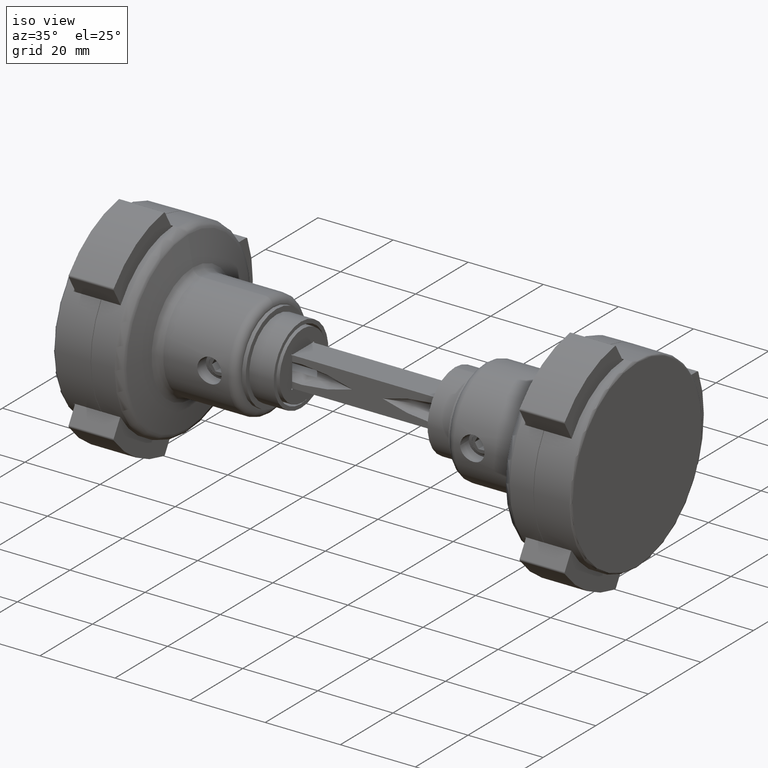
[diagram: clean part render]
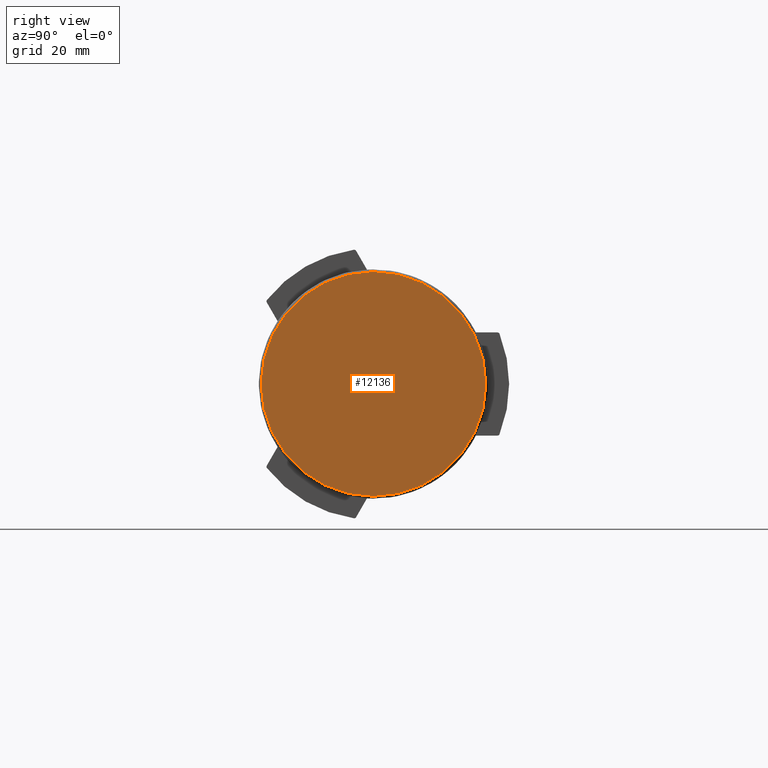
[diagram: tour spotlight — one face highlighted and labeled with its STEP entity id]
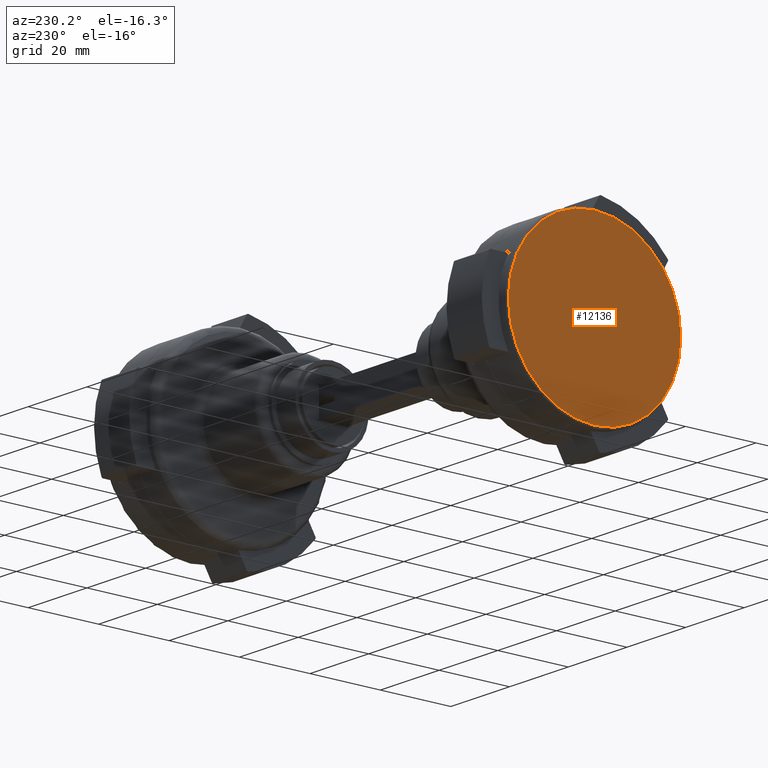
[diagram: tour spotlight — one face highlighted and labeled with its STEP entity id]
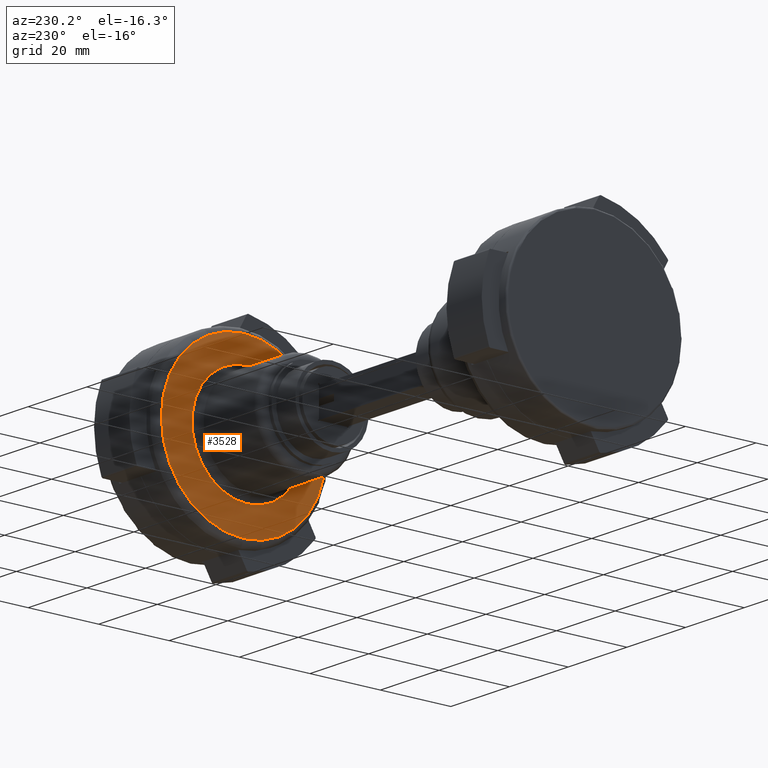
[diagram: tour spotlight — one face highlighted and labeled with its STEP entity id]
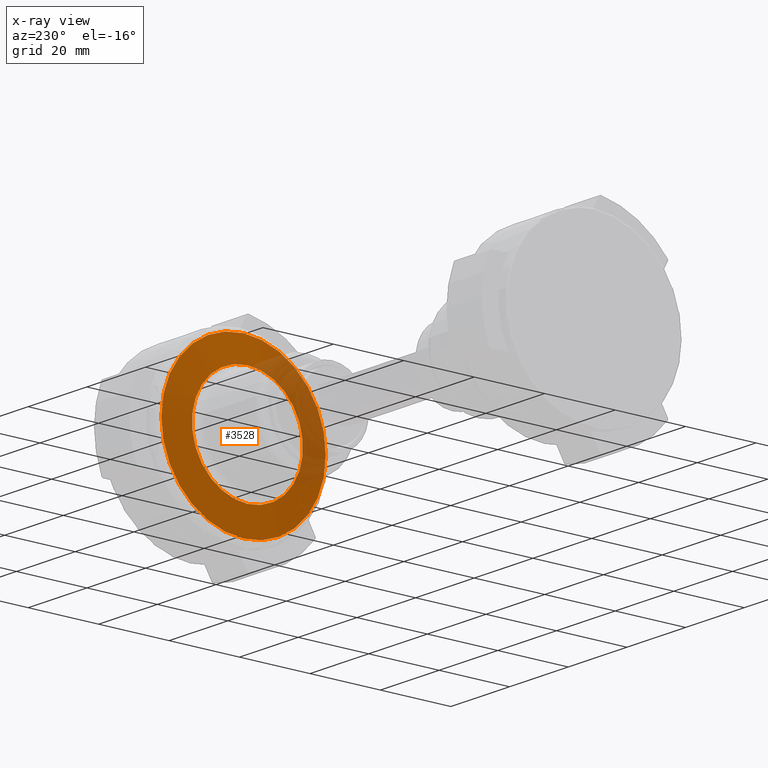
[diagram: x-ray of the same camera — body ghosted, this tour face saturated]
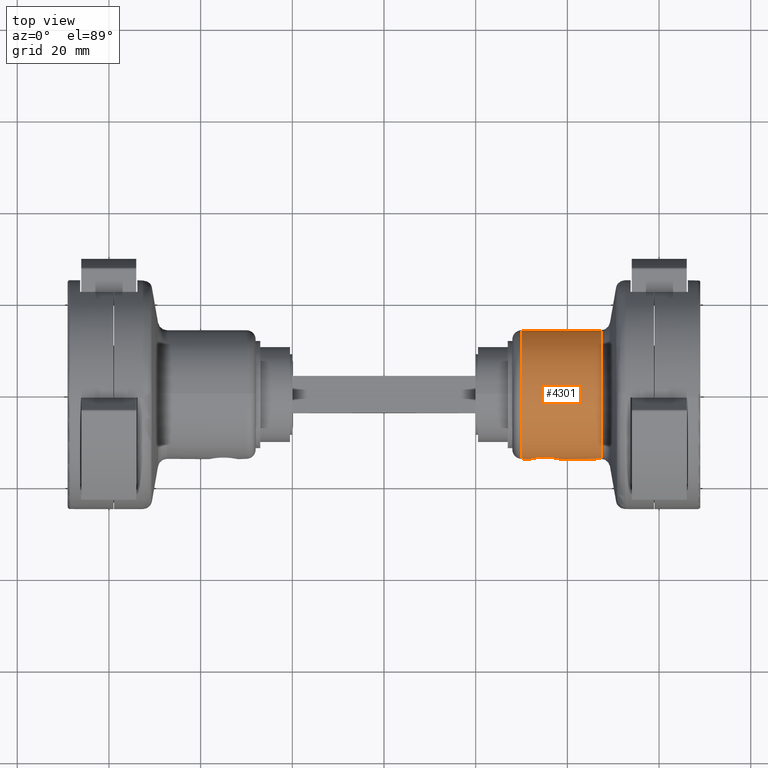
[diagram: tour spotlight — one face highlighted and labeled with its STEP entity id]
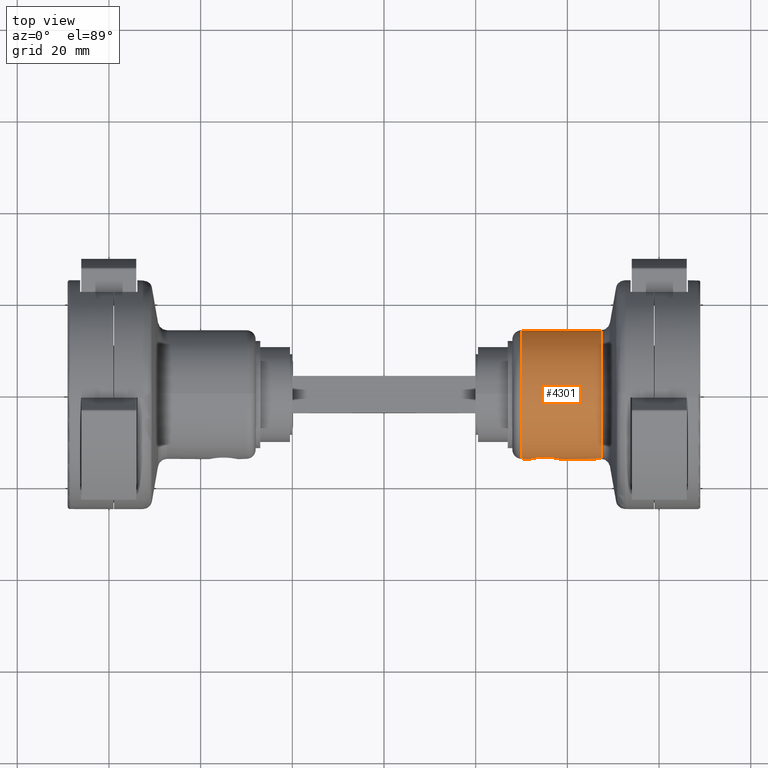
[diagram: tour spotlight — one face highlighted and labeled with its STEP entity id]
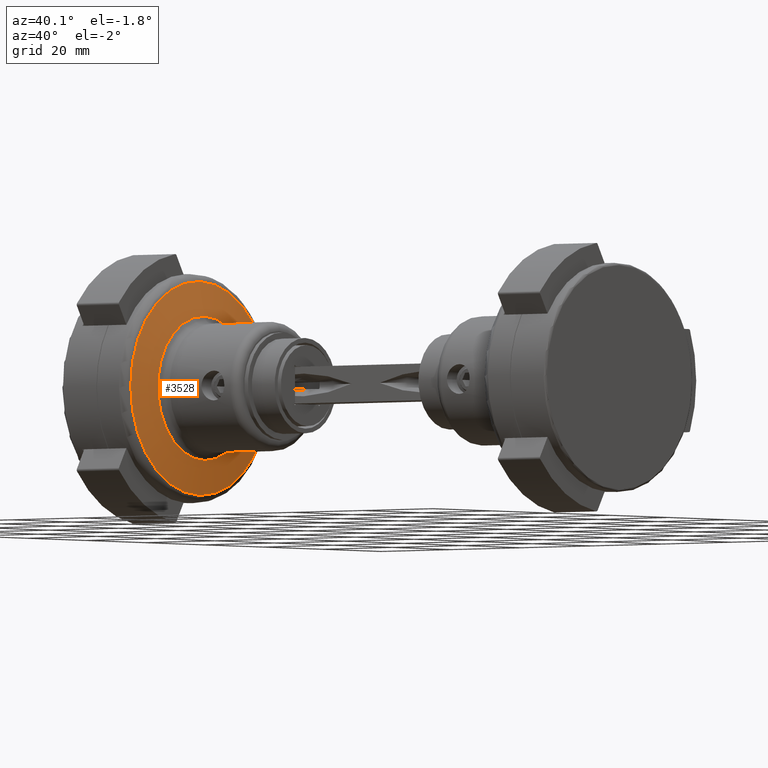
[diagram: tour spotlight — one face highlighted and labeled with its STEP entity id]
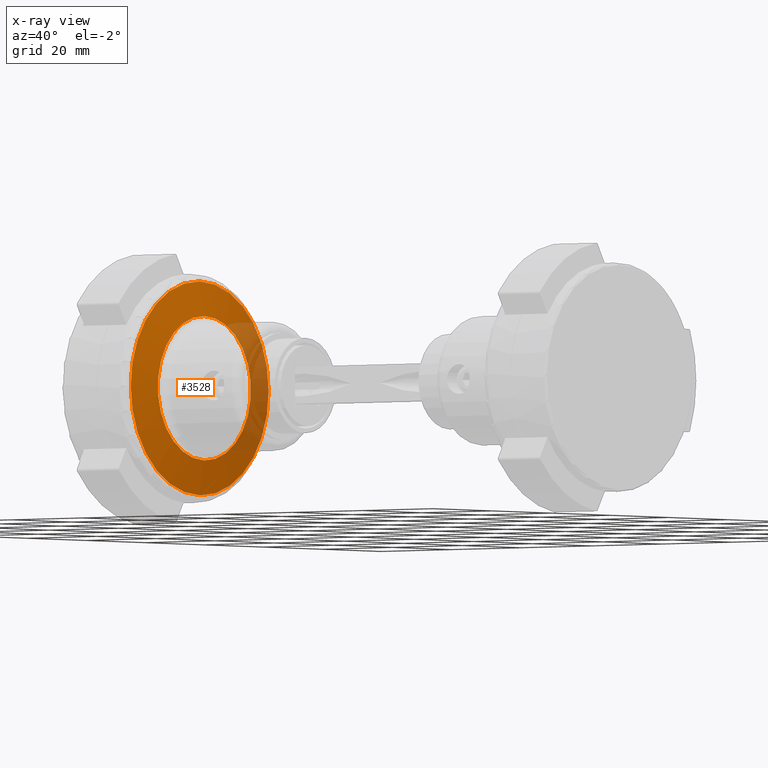
[diagram: x-ray of the same camera — body ghosted, this tour face saturated]
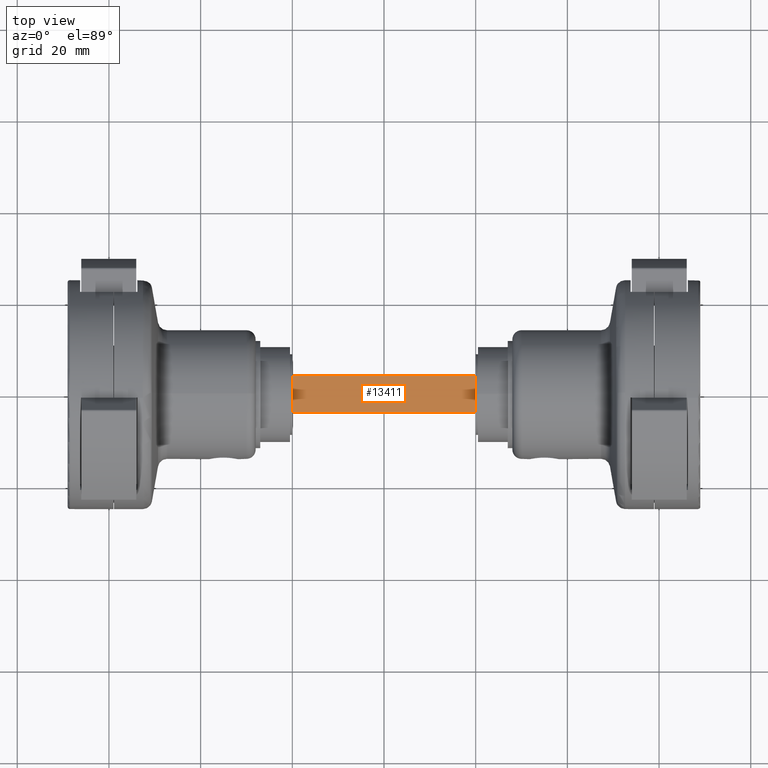
[diagram: tour spotlight — one face highlighted and labeled with its STEP entity id]
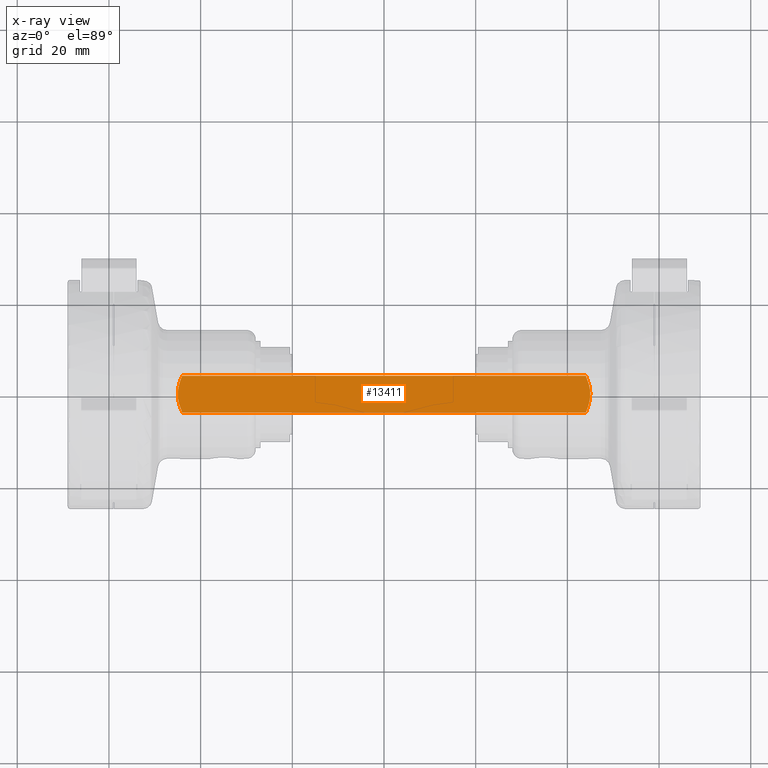
[diagram: x-ray of the same camera — body ghosted, this tour face saturated]
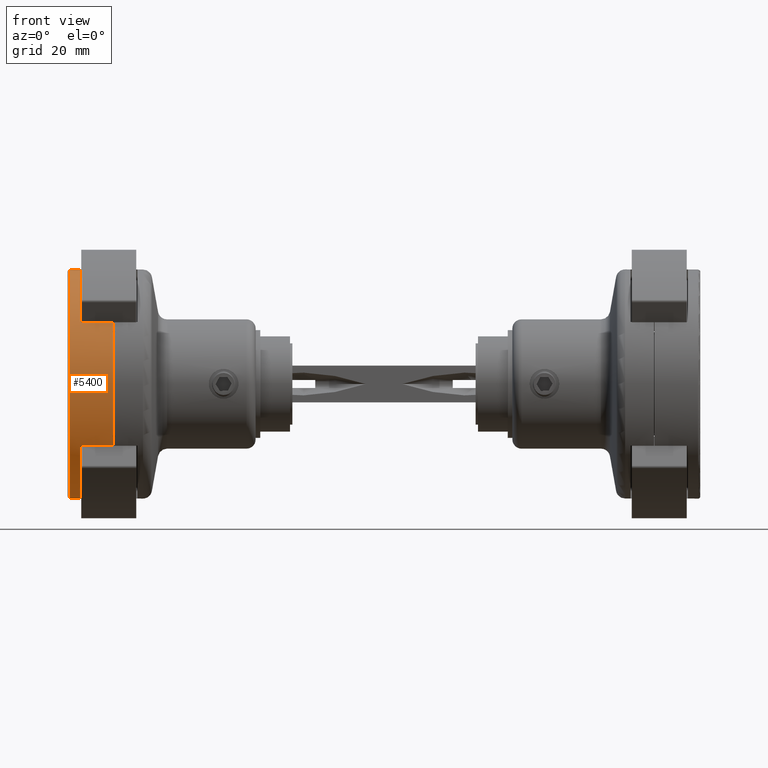
[diagram: tour spotlight — one face highlighted and labeled with its STEP entity id]
A machine part: a face-by-face anatomy tour. The part has 640 B-rep faces; the first image is the clean iso view, then the 8 largest visible faces are spotlighted one at a time (largest first), each with its STEP entity span.

Face 1 — right view, entity #12136. In plain terms, the highlighted planar face has unit normal (1, 0, 0).
Definition (entity closure, byte-faithful):
#1037 = FACE_OUTER_BOUND ( 'NONE', #8945, .T. ) ;
#1178 = DIRECTION ( 'NONE',  ( 1.000000000000000000, -1.099986463751427836E-17, 9.692327025551824772E-16 ) ) ;
#3153 = AXIS2_PLACEMENT_3D ( 'NONE', #3611, #4950, #1178 ) ;
#3611 = CARTESIAN_POINT ( 'NONE',  ( 9.692327025551824772E-15, 4.163336342344342549E-15, 10.00000000000000178 ) ) ;
#4086 = CARTESIAN_POINT ( 'NONE',  ( 9.692327025551824772E-15, 4.163336342344342549E-15, 10.00000000000000178 ) ) ;
#4629 = VERTEX_POINT ( 'NONE', #11203 ) ;
#4950 = DIRECTION ( 'NONE',  ( -9.692327025551824772E-16, 4.163336342344335547E-16, 1.000000000000000000 ) ) ;
#7343 = CIRCLE ( 'NONE', #9710, 24.50000000000000000 ) ;
#8945 = EDGE_LOOP ( 'NONE', ( #13982 ) ) ;
#9710 = AXIS2_PLACEMENT_3D ( 'NONE', #4086, #12688, #15162 ) ;
#11203 = CARTESIAN_POINT ( 'NONE',  ( 24.50000000000001066, 3.893839658725242038E-15, 10.00000000000002665 ) ) ;
#12136 = ADVANCED_FACE ( 'NONE', ( #1037 ), #14850, .T. ) ;
#12688 = DIRECTION ( 'NONE',  ( 9.692327025551828717E-16, 4.163336342344335547E-16, 1.000000000000000000 ) ) ;
#13982 = ORIENTED_EDGE ( 'NONE', *, *, #15252, .T. ) ;
#14850 = PLANE ( 'NONE',  #3153 ) ;
#15162 = DIRECTION ( 'NONE',  ( 1.000000000000000000, -1.099986463751429069E-17, 9.912705577010326536E-16 ) ) ;
#15252 = EDGE_CURVE ( 'NONE', #4629, #4629, #7343, .T. ) ;

Face 2 — auxiliary view, entity #12136. In plain terms, the highlighted planar face has unit normal (-1, 0, -0).
Definition (entity closure, byte-faithful):
#1037 = FACE_OUTER_BOUND ( 'NONE', #8945, .T. ) ;
#1178 = DIRECTION ( 'NONE',  ( 1.000000000000000000, -1.099986463751427836E-17, 9.692327025551824772E-16 ) ) ;
#3153 = AXIS2_PLACEMENT_3D ( 'NONE', #3611, #4950, #1178 ) ;
#3611 = CARTESIAN_POINT ( 'NONE',  ( 9.692327025551824772E-15, 4.163336342344342549E-15, 10.00000000000000178 ) ) ;
#4086 = CARTESIAN_POINT ( 'NONE',  ( 9.692327025551824772E-15, 4.163336342344342549E-15, 10.00000000000000178 ) ) ;
#4629 = VERTEX_POINT ( 'NONE', #11203 ) ;
#4950 = DIRECTION ( 'NONE',  ( -9.692327025551824772E-16, 4.163336342344335547E-16, 1.000000000000000000 ) ) ;
#7343 = CIRCLE ( 'NONE', #9710, 24.50000000000000000 ) ;
#8945 = EDGE_LOOP ( 'NONE', ( #13982 ) ) ;
#9710 = AXIS2_PLACEMENT_3D ( 'NONE', #4086, #12688, #15162 ) ;
#11203 = CARTESIAN_POINT ( 'NONE',  ( 24.50000000000001066, 3.893839658725242038E-15, 10.00000000000002665 ) ) ;
#12136 = ADVANCED_FACE ( 'NONE', ( #1037 ), #14850, .T. ) ;
#12688 = DIRECTION ( 'NONE',  ( 9.692327025551828717E-16, 4.163336342344335547E-16, 1.000000000000000000 ) ) ;
#13982 = ORIENTED_EDGE ( 'NONE', *, *, #15252, .T. ) ;
#14850 = PLANE ( 'NONE',  #3153 ) ;
#15162 = DIRECTION ( 'NONE',  ( 1.000000000000000000, -1.099986463751429069E-17, 9.912705577010326536E-16 ) ) ;
#15252 = EDGE_CURVE ( 'NONE', #4629, #4629, #7343, .T. ) ;

Face 3 — auxiliary view, entity #3528. An x-ray twin of the same camera follows (body ghosted, this face saturated) — the face is partly hidden behind the body. In plain terms, the highlighted conical surface has half-angle 80 deg.
Definition (entity closure, byte-faithful):
#3060 = DIRECTION ( 'NONE',  ( -9.692327025551828717E-16, -4.163336342344337520E-16, -1.000000000000000000 ) ) ;
#3528 = ADVANCED_FACE ( 'NONE', ( #15640, #12341 ), #7546, .T. ) ;
#3892 = AXIS2_PLACEMENT_3D ( 'NONE', #9104, #3060, #5481 ) ;
#3998 = CIRCLE ( 'NONE', #3892, 23.34729635533384595 ) ;
#4239 = CARTESIAN_POINT ( 'NONE',  ( -8.111946730076965414E-15, -3.484484431804246536E-15, -8.369452153947651851 ) ) ;
#4292 = DIRECTION ( 'NONE',  ( 1.000000000000000000, -1.099986463751431226E-17, 9.659107780394654972E-16 ) ) ;
#4821 = EDGE_CURVE ( 'NONE', #9651, #9651, #7319, .T. ) ;
#5481 = DIRECTION ( 'NONE',  ( -1.000000000000000000, 1.099986463751429531E-17, -9.659107780394654972E-16 ) ) ;
#6277 = CARTESIAN_POINT ( 'NONE',  ( -23.34729635533385306, -3.227667332243643411E-15, -8.369452153947674944 ) ) ;
#7319 = CIRCLE ( 'NONE', #11318, 15.75270364466615725 ) ;
#7546 = CONICAL_SURFACE ( 'NONE', #13304, 23.34729635533384595, 1.396263401595470244 ) ;
#7763 = CARTESIAN_POINT ( 'NONE',  ( 15.75270364466614659, -4.215287566308550985E-15, -9.708583756330156689 ) ) ;
#7898 = DIRECTION ( 'NONE',  ( 9.692327025551828717E-16, 4.163336342344337520E-16, 1.000000000000000000 ) ) ;
#9104 = CARTESIAN_POINT ( 'NONE',  ( -8.111946730076965414E-15, -3.484484431804246536E-15, -8.369452153947651851 ) ) ;
#9111 = EDGE_CURVE ( 'NONE', #11756, #11756, #3998, .T. ) ;
#9651 = VERTEX_POINT ( 'NONE', #7763 ) ;
#10057 = EDGE_LOOP ( 'NONE', ( #12020 ) ) ;
#10520 = EDGE_LOOP ( 'NONE', ( #11915 ) ) ;
#11069 = DIRECTION ( 'NONE',  ( 9.692327025551828717E-16, 4.163336342344337520E-16, 1.000000000000000000 ) ) ;
#11318 = AXIS2_PLACEMENT_3D ( 'NONE', #12021, #11069, #15215 ) ;
#11756 = VERTEX_POINT ( 'NONE', #6277 ) ;
#11915 = ORIENTED_EDGE ( 'NONE', *, *, #4821, .T. ) ;
#12020 = ORIENTED_EDGE ( 'NONE', *, *, #9111, .T. ) ;
#12021 = CARTESIAN_POINT ( 'NONE',  ( -9.409876872131239817E-15, -4.042009958542345569E-15, -9.708583756330172676 ) ) ;
#12341 = FACE_OUTER_BOUND ( 'NONE', #10057, .T. ) ;
#13304 = AXIS2_PLACEMENT_3D ( 'NONE', #4239, #7898, #4292 ) ;
#15215 = DIRECTION ( 'NONE',  ( 1.000000000000000000, -1.099986463751428915E-17, 9.911004254230122583E-16 ) ) ;
#15640 = FACE_BOUND ( 'NONE', #10520, .T. ) ;

Face 4 — top view, entity #4301. In plain terms, the highlighted cylindrical surface (bore or boss wall) has radius 14.1 mm, axis along (-1, 0, 0).
Definition (entity closure, byte-faithful):
#55 = DIRECTION ( 'NONE',  ( 9.692327025551828717E-16, 4.163336342344337520E-16, 1.000000000000000000 ) ) ;
#180 = CARTESIAN_POINT ( 'NONE',  ( -2.146347546037513876, -13.93650907273763728, -21.55039141242107803 ) ) ;
#233 = CARTESIAN_POINT ( 'NONE',  ( 1.050339991579569698, -14.06220461087285578, -20.91707315751334662 ) ) ;
#287 = CARTESIAN_POINT ( 'NONE',  ( -1.444892333933093465, -14.02714557646288540, -26.91884206615987907 ) ) ;
#402 = CARTESIAN_POINT ( 'NONE',  ( 3.249868239064833020, -13.72036283947628021, -24.21475354042256356 ) ) ;
#1159 = CARTESIAN_POINT ( 'NONE',  ( 1.630029551670204579, -14.00659230092163199, -26.81966554561278571 ) ) ;
#1395 = DIRECTION ( 'NONE',  ( 1.000000000000000000, -1.099986463751450177E-17, 9.842402700577627086E-16 ) ) ;
#1397 = CARTESIAN_POINT ( 'NONE',  ( 1.443637648007002117, -14.02729037170363924, -26.91954528670860469 ) ) ;
#1460 = CARTESIAN_POINT ( 'NONE',  ( -1.631439142730679359, -14.00644204517781866, -26.81895779320367978 ) ) ;
#1517 = CARTESIAN_POINT ( 'NONE',  ( -0.4236401551702047019, -14.10004080416066863, -20.74982297270359410 ) ) ;
#1565 = CARTESIAN_POINT ( 'NONE',  ( -2.918370580013769366, -13.79493327536143887, -22.55385285483436064 ) ) ;
#1610 = CARTESIAN_POINT ( 'NONE',  ( 3.229049480500165270, -13.72534475984562796, -24.42609901976457110 ) ) ;
#1657 = CARTESIAN_POINT ( 'NONE',  ( -1.439909389396298423, -14.02766094858801793, -21.07869041162180324 ) ) ;
#1660 = ORIENTED_EDGE ( 'NONE', *, *, #12776, .F. ) ;
#1920 = AXIS2_PLACEMENT_3D ( 'NONE', #2466, #55, #4809 ) ;
#2331 = AXIS2_PLACEMENT_3D ( 'NONE', #11180, #13473, #1395 ) ;
#2466 = CARTESIAN_POINT ( 'NONE',  ( -2.810774837410026817E-14, -1.207367539279858053E-14, -28.99999999999999645 ) ) ;
#2534 = CYLINDRICAL_SURFACE ( 'NONE', #2331, 14.10000000000000142 ) ;
#2552 = CARTESIAN_POINT ( 'NONE',  ( 14.09999999999997300, -1.222877348418753113E-14, -28.99999999999998579 ) ) ;
#2709 = CARTESIAN_POINT ( 'NONE',  ( -0.8471226243025558045, -14.07609290763792842, -27.14492596439410832 ) ) ;
#2760 = VERTEX_POINT ( 'NONE', #2552 ) ;
#2817 = CARTESIAN_POINT ( 'NONE',  ( -2.583023531563694686, -13.86190263118351851, -22.01627404798929888 ) ) ;
#2879 = CARTESIAN_POINT ( 'NONE',  ( -3.083547216879514608, -13.75894847386537734, -25.04848623635814064 ) ) ;
#2926 = CARTESIAN_POINT ( 'NONE',  ( 3.228856882126815098, -13.72538919893563580, -23.57307106724361034 ) ) ;
#3660 = ORIENTED_EDGE ( 'NONE', *, *, #8382, .T. ) ;
#3699 = CARTESIAN_POINT ( 'NONE',  ( 2.920145126463861818, -13.79455152759564207, -25.44222169248870102 ) ) ;
#3921 = CARTESIAN_POINT ( 'NONE',  ( 1.442815445188318613, -14.02736953983501422, -21.08007952074683899 ) ) ;
#3975 = CARTESIAN_POINT ( 'NONE',  ( -2.818212849854841551, -13.81600634966332741, -22.36756147123222149 ) ) ;
#4075 = CARTESIAN_POINT ( 'NONE',  ( 2.819185170840874388, -13.81580654603867053, -22.36925372504533982 ) ) ;
#4301 = ADVANCED_FACE ( 'NONE', ( #9833, #11758, #10412 ), #2534, .T. ) ;
#4809 = DIRECTION ( 'NONE',  ( 1.000000000000000000, -1.099986463751428299E-17, 9.842402700577627086E-16 ) ) ;
#4875 = CARTESIAN_POINT ( 'NONE',  ( 2.149186909597633477, -13.93606471845211736, -26.44705997920578966 ) ) ;
#5241 = CARTESIAN_POINT ( 'NONE',  ( 2.920576908219976175, -13.79446367114621630, -22.55837146604935839 ) ) ;
#5289 = CARTESIAN_POINT ( 'NONE',  ( 2.449150484295611108, -13.88650410854700645, -21.85300112271603723 ) ) ;
#5385 = VERTEX_POINT ( 'NONE', #7435 ) ;
#6087 = CARTESIAN_POINT ( 'NONE',  ( -2.630545520992955133E-14, -14.10000000000002984, -27.24999999999998224 ) ) ;
#6240 = DIRECTION ( 'NONE',  ( -1.000000000000000000, 1.099986463751428299E-17, -9.842402700577627086E-16 ) ) ;
#6308 = CARTESIAN_POINT ( 'NONE',  ( -0.8527203650888599551, -14.07967723109492653, -20.83536368246717885 ) ) ;
#6367 = CARTESIAN_POINT ( 'NONE',  ( -2.584773583056655166, -13.86158209757194548, -25.98161331870717916 ) ) ;
#6477 = CARTESIAN_POINT ( 'NONE',  ( -1.986322644435224438, -13.96053490356164062, -26.58120883860672379 ) ) ;
#6612 = CARTESIAN_POINT ( 'NONE',  ( -14.10000000000001386, -4.706929048821017716E-15, -11.67819926235458183 ) ) ;
#6930 = EDGE_CURVE ( 'NONE', #2760, #2760, #11518, .T. ) ;
#6963 = AXIS2_PLACEMENT_3D ( 'NONE', #10947, #16013, #6240 ) ;
#7352 = CARTESIAN_POINT ( 'NONE',  ( 2.582080054683608683, -13.86208900803732824, -25.98518904288536291 ) ) ;
#7435 = CARTESIAN_POINT ( 'NONE',  ( -2.625649305323972418E-14, -14.10000000000002807, -27.24999999999998934 ) ) ;
#7574 = CARTESIAN_POINT ( 'NONE',  ( -3.249741548033747041, -13.72039284937602233, -23.56908848455915617 ) ) ;
#7622 = CARTESIAN_POINT ( 'NONE',  ( -0.2154868936281282843, -14.10000000000003162, -27.24999999999997868 ) ) ;
#7623 = EDGE_LOOP ( 'NONE', ( #1660 ) ) ;
#7677 = CARTESIAN_POINT ( 'NONE',  ( 1.633143768539189633, -14.00622043700517061, -21.18219231761355204 ) ) ;
#7705 = EDGE_LOOP ( 'NONE', ( #13950 ) ) ;
#8382 = EDGE_CURVE ( 'NONE', #16007, #16007, #11682, .T. ) ;
#8534 = CARTESIAN_POINT ( 'NONE',  ( 0.2154868936280764369, -14.10000000000002629, -27.24999999999998579 ) ) ;
#8813 = CARTESIAN_POINT ( 'NONE',  ( 0.4295968149986306162, -14.09500789971972168, -20.77146880833898379 ) ) ;
#8869 = CARTESIAN_POINT ( 'NONE',  ( 3.145267980539162345, -13.74478587154908737, -24.84593749932112061 ) ) ;
#8920 = CARTESIAN_POINT ( 'NONE',  ( 3.145618557796239667, -13.74470477370702604, -23.15568431985998643 ) ) ;
#8970 = CARTESIAN_POINT ( 'NONE',  ( 3.084041808759184544, -13.75884019724140117, -22.95274242492420669 ) ) ;
#9021 = CARTESIAN_POINT ( 'NONE',  ( -3.250128345138605379, -13.72030122692950549, -24.21252518889689398 ) ) ;
#9826 = CARTESIAN_POINT ( 'NONE',  ( 2.819664343485870805, -13.81572083047491972, -25.63021653005407074 ) ) ;
#9833 = FACE_BOUND ( 'NONE', #7623, .T. ) ;
#10036 = CARTESIAN_POINT ( 'NONE',  ( 1.984445707785591928, -13.96077880103939783, -21.41752561745801131 ) ) ;
#10085 = CARTESIAN_POINT ( 'NONE',  ( -3.146472517633104982, -13.74450854613531980, -24.84107854736475218 ) ) ;
#10144 = CARTESIAN_POINT ( 'NONE',  ( -2.630545520992955133E-14, -14.10000000000002984, -27.24999999999998224 ) ) ;
#10201 = CARTESIAN_POINT ( 'NONE',  ( 3.250130526020940547, -13.72030071033395870, -23.78925318926879839 ) ) ;
#10252 = CARTESIAN_POINT ( 'NONE',  ( -3.164858592207496102, -13.74125007949370669, -23.14613600475810529 ) ) ;
#10412 = FACE_OUTER_BOUND ( 'NONE', #13881, .T. ) ;
#10947 = CARTESIAN_POINT ( 'NONE',  ( -1.131889263202983686E-14, -4.862027140209969100E-15, -11.67819926235456940 ) ) ;
#11007 = CARTESIAN_POINT ( 'NONE',  ( 1.982762739287402987, -13.96102704471446820, -26.58382701590636543 ) ) ;
#11125 = CARTESIAN_POINT ( 'NONE',  ( 0.8435829494560693753, -14.07628478072245848, -27.14577929968288217 ) ) ;
#11180 = CARTESIAN_POINT ( 'NONE',  ( -1.084385519159568024E-13, -4.657974941546016834E-14, -111.8808224589212870 ) ) ;
#11287 = CARTESIAN_POINT ( 'NONE',  ( -1.053871175837810981, -14.06193025244681571, -27.08167298858610295 ) ) ;
#11392 = CARTESIAN_POINT ( 'NONE',  ( -0.4279887179410309939, -14.09506416950186214, -27.22877712446068443 ) ) ;
#11497 = CARTESIAN_POINT ( 'NONE',  ( -3.229230985827091338, -13.72530042364033420, -24.42399253204740006 ) ) ;
#11518 = CIRCLE ( 'NONE', #1920, 14.10000000000000142 ) ;
#11682 = CIRCLE ( 'NONE', #6963, 14.10000000000000142 ) ;
#11758 = FACE_OUTER_BOUND ( 'NONE', #7705, .T. ) ;
#12235 = CARTESIAN_POINT ( 'NONE',  ( 0.4272310187348314914, -14.09506648005756801, -27.22878200743827293 ) ) ;
#12290 = CARTESIAN_POINT ( 'NONE',  ( 3.082463378999393822, -13.75919034406565622, -25.05150867187265717 ) ) ;
#12401 = CARTESIAN_POINT ( 'NONE',  ( 1.050394434121875387, -14.06220595652042782, -27.08293786389723934 ) ) ;
#12467 = CARTESIAN_POINT ( 'NONE',  ( 0.2138539478575718633, -14.09997950012705203, -20.75008893791752129 ) ) ;
#12521 = CARTESIAN_POINT ( 'NONE',  ( -2.920912427314459769, -13.79439006035308068, -25.44078361266279131 ) ) ;
#12570 = CARTESIAN_POINT ( 'NONE',  ( -2.821242455555449169, -13.81539372332059479, -25.62740186417395805 ) ) ;
#12624 = CARTESIAN_POINT ( 'NONE',  ( -2.446217143083310397, -13.88701244371031329, -21.84978798496360852 ) ) ;
#12680 = CARTESIAN_POINT ( 'NONE',  ( -1.983184242956759213, -13.96097047506007627, -21.41647042684616764 ) ) ;
#12776 = EDGE_CURVE ( 'NONE', #5385, #5385, #13668, .T. ) ;
#13473 = DIRECTION ( 'NONE',  ( 9.692327025551828717E-16, 4.163336342344337520E-16, 1.000000000000000000 ) ) ;
#13474 = CARTESIAN_POINT ( 'NONE',  ( 2.447820861862290531, -13.88672305612464086, -26.14832026068003756 ) ) ;
#13668 = B_SPLINE_CURVE_WITH_KNOTS ( 'NONE', 3,
 ( #6087, #8534, #12235, #11125, #12401, #1397, #1159, #11007, #4875, #13474, #7352, #9826, #3699, #12290, #8869, #1610, #402, #10201, #2926, #8920, #8970, #5241, #4075, #13690, #5289, #13737, #10036, #7677, #3921, #233, #13854, #8813, #12467, #1517, #6308, #1657, #15047, #12680, #180, #12624, #2817, #3975, #1565, #10252, #7574, #9021, #11497, #10085, #2879, #12521, #12570, #6367, #15094, #14949, #6477, #1460, #287, #11287, #2709, #11392, #7622, #10144 ),
 .UNSPECIFIED., .T., .F.,
 ( 4, 2, 2, 2, 2, 2, 2, 2, 2, 2, 2, 2, 2, 2, 2, 2, 2, 2, 2, 2, 2, 2, 2, 2, 2, 2, 2, 2, 2, 2, 4 ),
 ( 0.000000000000000000, 0.0006371247039351717436, 0.001274249407870343487, 0.001911374111805515122, 0.002548498815740686541, 0.003185623519675857742, 0.003822748223611028510, 0.004459872927546199711, 0.005096997631481370479, 0.005734122335416542114, 0.006371247039351712882, 0.007008371743286884517, 0.007645496447222056152, 0.008282621151157227787, 0.008919745855092399422, 0.009556870559027571058, 0.01019399526296274269, 0.01146824467083308596, 0.01210536937476825933, 0.01274249407870343097, 0.01337961878263860260, 0.01401674348657377250, 0.01529099289444411404, 0.01592811759837928567, 0.01656524230231445904, 0.01720236700624962894, 0.01783949171018480231, 0.01847661641411997221, 0.01911374111805514212, 0.01975086582199031202, 0.02038799052592548192 ),
 .UNSPECIFIED. ) ;
#13690 = CARTESIAN_POINT ( 'NONE',  ( 2.584324040275896461, -13.86165880405032880, -22.01797888618212440 ) ) ;
#13737 = CARTESIAN_POINT ( 'NONE',  ( 2.147724511990132257, -13.93630560342355906, -21.55148581903617711 ) ) ;
#13854 = CARTESIAN_POINT ( 'NONE',  ( 0.8477415263303720305, -14.07604828853444445, -20.85527403681655301 ) ) ;
#13881 = EDGE_LOOP ( 'NONE', ( #3660 ) ) ;
#13950 = ORIENTED_EDGE ( 'NONE', *, *, #6930, .T. ) ;
#14949 = CARTESIAN_POINT ( 'NONE',  ( -2.150613236572933129, -13.93584249180517176, -26.44579171901921200 ) ) ;
#15047 = CARTESIAN_POINT ( 'NONE',  ( -1.629938200093619338, -14.00660622031214331, -21.18025776696734042 ) ) ;
#15094 = CARTESIAN_POINT ( 'NONE',  ( -2.448845175536905394, -13.88654026588245571, -26.14713570423376510 ) ) ;
#16007 = VERTEX_POINT ( 'NONE', #6612 ) ;
#16013 = DIRECTION ( 'NONE',  ( -9.692327025551828717E-16, -4.163336342344337520E-16, -1.000000000000000000 ) ) ;

Face 5 — top view, entity #4301. In plain terms, the highlighted cylindrical surface (bore or boss wall) has radius 14.1 mm, axis along (1, 0, -0).
Definition (entity closure, byte-faithful):
#55 = DIRECTION ( 'NONE',  ( 9.692327025551828717E-16, 4.163336342344337520E-16, 1.000000000000000000 ) ) ;
#180 = CARTESIAN_POINT ( 'NONE',  ( -2.146347546037513876, -13.93650907273763728, -21.55039141242107803 ) ) ;
#233 = CARTESIAN_POINT ( 'NONE',  ( 1.050339991579569698, -14.06220461087285578, -20.91707315751334662 ) ) ;
#287 = CARTESIAN_POINT ( 'NONE',  ( -1.444892333933093465, -14.02714557646288540, -26.91884206615987907 ) ) ;
#402 = CARTESIAN_POINT ( 'NONE',  ( 3.249868239064833020, -13.72036283947628021, -24.21475354042256356 ) ) ;
#1159 = CARTESIAN_POINT ( 'NONE',  ( 1.630029551670204579, -14.00659230092163199, -26.81966554561278571 ) ) ;
#1395 = DIRECTION ( 'NONE',  ( 1.000000000000000000, -1.099986463751450177E-17, 9.842402700577627086E-16 ) ) ;
#1397 = CARTESIAN_POINT ( 'NONE',  ( 1.443637648007002117, -14.02729037170363924, -26.91954528670860469 ) ) ;
#1460 = CARTESIAN_POINT ( 'NONE',  ( -1.631439142730679359, -14.00644204517781866, -26.81895779320367978 ) ) ;
#1517 = CARTESIAN_POINT ( 'NONE',  ( -0.4236401551702047019, -14.10004080416066863, -20.74982297270359410 ) ) ;
#1565 = CARTESIAN_POINT ( 'NONE',  ( -2.918370580013769366, -13.79493327536143887, -22.55385285483436064 ) ) ;
#1610 = CARTESIAN_POINT ( 'NONE',  ( 3.229049480500165270, -13.72534475984562796, -24.42609901976457110 ) ) ;
#1657 = CARTESIAN_POINT ( 'NONE',  ( -1.439909389396298423, -14.02766094858801793, -21.07869041162180324 ) ) ;
#1660 = ORIENTED_EDGE ( 'NONE', *, *, #12776, .F. ) ;
#1920 = AXIS2_PLACEMENT_3D ( 'NONE', #2466, #55, #4809 ) ;
#2331 = AXIS2_PLACEMENT_3D ( 'NONE', #11180, #13473, #1395 ) ;
#2466 = CARTESIAN_POINT ( 'NONE',  ( -2.810774837410026817E-14, -1.207367539279858053E-14, -28.99999999999999645 ) ) ;
#2534 = CYLINDRICAL_SURFACE ( 'NONE', #2331, 14.10000000000000142 ) ;
#2552 = CARTESIAN_POINT ( 'NONE',  ( 14.09999999999997300, -1.222877348418753113E-14, -28.99999999999998579 ) ) ;
#2709 = CARTESIAN_POINT ( 'NONE',  ( -0.8471226243025558045, -14.07609290763792842, -27.14492596439410832 ) ) ;
#2760 = VERTEX_POINT ( 'NONE', #2552 ) ;
#2817 = CARTESIAN_POINT ( 'NONE',  ( -2.583023531563694686, -13.86190263118351851, -22.01627404798929888 ) ) ;
#2879 = CARTESIAN_POINT ( 'NONE',  ( -3.083547216879514608, -13.75894847386537734, -25.04848623635814064 ) ) ;
#2926 = CARTESIAN_POINT ( 'NONE',  ( 3.228856882126815098, -13.72538919893563580, -23.57307106724361034 ) ) ;
#3660 = ORIENTED_EDGE ( 'NONE', *, *, #8382, .T. ) ;
#3699 = CARTESIAN_POINT ( 'NONE',  ( 2.920145126463861818, -13.79455152759564207, -25.44222169248870102 ) ) ;
#3921 = CARTESIAN_POINT ( 'NONE',  ( 1.442815445188318613, -14.02736953983501422, -21.08007952074683899 ) ) ;
#3975 = CARTESIAN_POINT ( 'NONE',  ( -2.818212849854841551, -13.81600634966332741, -22.36756147123222149 ) ) ;
#4075 = CARTESIAN_POINT ( 'NONE',  ( 2.819185170840874388, -13.81580654603867053, -22.36925372504533982 ) ) ;
#4301 = ADVANCED_FACE ( 'NONE', ( #9833, #11758, #10412 ), #2534, .T. ) ;
#4809 = DIRECTION ( 'NONE',  ( 1.000000000000000000, -1.099986463751428299E-17, 9.842402700577627086E-16 ) ) ;
#4875 = CARTESIAN_POINT ( 'NONE',  ( 2.149186909597633477, -13.93606471845211736, -26.44705997920578966 ) ) ;
#5241 = CARTESIAN_POINT ( 'NONE',  ( 2.920576908219976175, -13.79446367114621630, -22.55837146604935839 ) ) ;
#5289 = CARTESIAN_POINT ( 'NONE',  ( 2.449150484295611108, -13.88650410854700645, -21.85300112271603723 ) ) ;
#5385 = VERTEX_POINT ( 'NONE', #7435 ) ;
#6087 = CARTESIAN_POINT ( 'NONE',  ( -2.630545520992955133E-14, -14.10000000000002984, -27.24999999999998224 ) ) ;
#6240 = DIRECTION ( 'NONE',  ( -1.000000000000000000, 1.099986463751428299E-17, -9.842402700577627086E-16 ) ) ;
#6308 = CARTESIAN_POINT ( 'NONE',  ( -0.8527203650888599551, -14.07967723109492653, -20.83536368246717885 ) ) ;
#6367 = CARTESIAN_POINT ( 'NONE',  ( -2.584773583056655166, -13.86158209757194548, -25.98161331870717916 ) ) ;
#6477 = CARTESIAN_POINT ( 'NONE',  ( -1.986322644435224438, -13.96053490356164062, -26.58120883860672379 ) ) ;
#6612 = CARTESIAN_POINT ( 'NONE',  ( -14.10000000000001386, -4.706929048821017716E-15, -11.67819926235458183 ) ) ;
#6930 = EDGE_CURVE ( 'NONE', #2760, #2760, #11518, .T. ) ;
#6963 = AXIS2_PLACEMENT_3D ( 'NONE', #10947, #16013, #6240 ) ;
#7352 = CARTESIAN_POINT ( 'NONE',  ( 2.582080054683608683, -13.86208900803732824, -25.98518904288536291 ) ) ;
#7435 = CARTESIAN_POINT ( 'NONE',  ( -2.625649305323972418E-14, -14.10000000000002807, -27.24999999999998934 ) ) ;
#7574 = CARTESIAN_POINT ( 'NONE',  ( -3.249741548033747041, -13.72039284937602233, -23.56908848455915617 ) ) ;
#7622 = CARTESIAN_POINT ( 'NONE',  ( -0.2154868936281282843, -14.10000000000003162, -27.24999999999997868 ) ) ;
#7623 = EDGE_LOOP ( 'NONE', ( #1660 ) ) ;
#7677 = CARTESIAN_POINT ( 'NONE',  ( 1.633143768539189633, -14.00622043700517061, -21.18219231761355204 ) ) ;
#7705 = EDGE_LOOP ( 'NONE', ( #13950 ) ) ;
#8382 = EDGE_CURVE ( 'NONE', #16007, #16007, #11682, .T. ) ;
#8534 = CARTESIAN_POINT ( 'NONE',  ( 0.2154868936280764369, -14.10000000000002629, -27.24999999999998579 ) ) ;
#8813 = CARTESIAN_POINT ( 'NONE',  ( 0.4295968149986306162, -14.09500789971972168, -20.77146880833898379 ) ) ;
#8869 = CARTESIAN_POINT ( 'NONE',  ( 3.145267980539162345, -13.74478587154908737, -24.84593749932112061 ) ) ;
#8920 = CARTESIAN_POINT ( 'NONE',  ( 3.145618557796239667, -13.74470477370702604, -23.15568431985998643 ) ) ;
#8970 = CARTESIAN_POINT ( 'NONE',  ( 3.084041808759184544, -13.75884019724140117, -22.95274242492420669 ) ) ;
#9021 = CARTESIAN_POINT ( 'NONE',  ( -3.250128345138605379, -13.72030122692950549, -24.21252518889689398 ) ) ;
#9826 = CARTESIAN_POINT ( 'NONE',  ( 2.819664343485870805, -13.81572083047491972, -25.63021653005407074 ) ) ;
#9833 = FACE_BOUND ( 'NONE', #7623, .T. ) ;
#10036 = CARTESIAN_POINT ( 'NONE',  ( 1.984445707785591928, -13.96077880103939783, -21.41752561745801131 ) ) ;
#10085 = CARTESIAN_POINT ( 'NONE',  ( -3.146472517633104982, -13.74450854613531980, -24.84107854736475218 ) ) ;
#10144 = CARTESIAN_POINT ( 'NONE',  ( -2.630545520992955133E-14, -14.10000000000002984, -27.24999999999998224 ) ) ;
#10201 = CARTESIAN_POINT ( 'NONE',  ( 3.250130526020940547, -13.72030071033395870, -23.78925318926879839 ) ) ;
#10252 = CARTESIAN_POINT ( 'NONE',  ( -3.164858592207496102, -13.74125007949370669, -23.14613600475810529 ) ) ;
#10412 = FACE_OUTER_BOUND ( 'NONE', #13881, .T. ) ;
#10947 = CARTESIAN_POINT ( 'NONE',  ( -1.131889263202983686E-14, -4.862027140209969100E-15, -11.67819926235456940 ) ) ;
#11007 = CARTESIAN_POINT ( 'NONE',  ( 1.982762739287402987, -13.96102704471446820, -26.58382701590636543 ) ) ;
#11125 = CARTESIAN_POINT ( 'NONE',  ( 0.8435829494560693753, -14.07628478072245848, -27.14577929968288217 ) ) ;
#11180 = CARTESIAN_POINT ( 'NONE',  ( -1.084385519159568024E-13, -4.657974941546016834E-14, -111.8808224589212870 ) ) ;
#11287 = CARTESIAN_POINT ( 'NONE',  ( -1.053871175837810981, -14.06193025244681571, -27.08167298858610295 ) ) ;
#11392 = CARTESIAN_POINT ( 'NONE',  ( -0.4279887179410309939, -14.09506416950186214, -27.22877712446068443 ) ) ;
#11497 = CARTESIAN_POINT ( 'NONE',  ( -3.229230985827091338, -13.72530042364033420, -24.42399253204740006 ) ) ;
#11518 = CIRCLE ( 'NONE', #1920, 14.10000000000000142 ) ;
#11682 = CIRCLE ( 'NONE', #6963, 14.10000000000000142 ) ;
#11758 = FACE_OUTER_BOUND ( 'NONE', #7705, .T. ) ;
#12235 = CARTESIAN_POINT ( 'NONE',  ( 0.4272310187348314914, -14.09506648005756801, -27.22878200743827293 ) ) ;
#12290 = CARTESIAN_POINT ( 'NONE',  ( 3.082463378999393822, -13.75919034406565622, -25.05150867187265717 ) ) ;
#12401 = CARTESIAN_POINT ( 'NONE',  ( 1.050394434121875387, -14.06220595652042782, -27.08293786389723934 ) ) ;
#12467 = CARTESIAN_POINT ( 'NONE',  ( 0.2138539478575718633, -14.09997950012705203, -20.75008893791752129 ) ) ;
#12521 = CARTESIAN_POINT ( 'NONE',  ( -2.920912427314459769, -13.79439006035308068, -25.44078361266279131 ) ) ;
#12570 = CARTESIAN_POINT ( 'NONE',  ( -2.821242455555449169, -13.81539372332059479, -25.62740186417395805 ) ) ;
#12624 = CARTESIAN_POINT ( 'NONE',  ( -2.446217143083310397, -13.88701244371031329, -21.84978798496360852 ) ) ;
#12680 = CARTESIAN_POINT ( 'NONE',  ( -1.983184242956759213, -13.96097047506007627, -21.41647042684616764 ) ) ;
#12776 = EDGE_CURVE ( 'NONE', #5385, #5385, #13668, .T. ) ;
#13473 = DIRECTION ( 'NONE',  ( 9.692327025551828717E-16, 4.163336342344337520E-16, 1.000000000000000000 ) ) ;
#13474 = CARTESIAN_POINT ( 'NONE',  ( 2.447820861862290531, -13.88672305612464086, -26.14832026068003756 ) ) ;
#13668 = B_SPLINE_CURVE_WITH_KNOTS ( 'NONE', 3,
 ( #6087, #8534, #12235, #11125, #12401, #1397, #1159, #11007, #4875, #13474, #7352, #9826, #3699, #12290, #8869, #1610, #402, #10201, #2926, #8920, #8970, #5241, #4075, #13690, #5289, #13737, #10036, #7677, #3921, #233, #13854, #8813, #12467, #1517, #6308, #1657, #15047, #12680, #180, #12624, #2817, #3975, #1565, #10252, #7574, #9021, #11497, #10085, #2879, #12521, #12570, #6367, #15094, #14949, #6477, #1460, #287, #11287, #2709, #11392, #7622, #10144 ),
 .UNSPECIFIED., .T., .F.,
 ( 4, 2, 2, 2, 2, 2, 2, 2, 2, 2, 2, 2, 2, 2, 2, 2, 2, 2, 2, 2, 2, 2, 2, 2, 2, 2, 2, 2, 2, 2, 4 ),
 ( 0.000000000000000000, 0.0006371247039351717436, 0.001274249407870343487, 0.001911374111805515122, 0.002548498815740686541, 0.003185623519675857742, 0.003822748223611028510, 0.004459872927546199711, 0.005096997631481370479, 0.005734122335416542114, 0.006371247039351712882, 0.007008371743286884517, 0.007645496447222056152, 0.008282621151157227787, 0.008919745855092399422, 0.009556870559027571058, 0.01019399526296274269, 0.01146824467083308596, 0.01210536937476825933, 0.01274249407870343097, 0.01337961878263860260, 0.01401674348657377250, 0.01529099289444411404, 0.01592811759837928567, 0.01656524230231445904, 0.01720236700624962894, 0.01783949171018480231, 0.01847661641411997221, 0.01911374111805514212, 0.01975086582199031202, 0.02038799052592548192 ),
 .UNSPECIFIED. ) ;
#13690 = CARTESIAN_POINT ( 'NONE',  ( 2.584324040275896461, -13.86165880405032880, -22.01797888618212440 ) ) ;
#13737 = CARTESIAN_POINT ( 'NONE',  ( 2.147724511990132257, -13.93630560342355906, -21.55148581903617711 ) ) ;
#13854 = CARTESIAN_POINT ( 'NONE',  ( 0.8477415263303720305, -14.07604828853444445, -20.85527403681655301 ) ) ;
#13881 = EDGE_LOOP ( 'NONE', ( #3660 ) ) ;
#13950 = ORIENTED_EDGE ( 'NONE', *, *, #6930, .T. ) ;
#14949 = CARTESIAN_POINT ( 'NONE',  ( -2.150613236572933129, -13.93584249180517176, -26.44579171901921200 ) ) ;
#15047 = CARTESIAN_POINT ( 'NONE',  ( -1.629938200093619338, -14.00660622031214331, -21.18025776696734042 ) ) ;
#15094 = CARTESIAN_POINT ( 'NONE',  ( -2.448845175536905394, -13.88654026588245571, -26.14713570423376510 ) ) ;
#16007 = VERTEX_POINT ( 'NONE', #6612 ) ;
#16013 = DIRECTION ( 'NONE',  ( -9.692327025551828717E-16, -4.163336342344337520E-16, -1.000000000000000000 ) ) ;

Face 6 — auxiliary view, entity #3528. An x-ray twin of the same camera follows (body ghosted, this face saturated) — the face is partly hidden behind the body. In plain terms, the highlighted conical surface has half-angle 80 deg.
Definition (entity closure, byte-faithful):
#3060 = DIRECTION ( 'NONE',  ( -9.692327025551828717E-16, -4.163336342344337520E-16, -1.000000000000000000 ) ) ;
#3528 = ADVANCED_FACE ( 'NONE', ( #15640, #12341 ), #7546, .T. ) ;
#3892 = AXIS2_PLACEMENT_3D ( 'NONE', #9104, #3060, #5481 ) ;
#3998 = CIRCLE ( 'NONE', #3892, 23.34729635533384595 ) ;
#4239 = CARTESIAN_POINT ( 'NONE',  ( -8.111946730076965414E-15, -3.484484431804246536E-15, -8.369452153947651851 ) ) ;
#4292 = DIRECTION ( 'NONE',  ( 1.000000000000000000, -1.099986463751431226E-17, 9.659107780394654972E-16 ) ) ;
#4821 = EDGE_CURVE ( 'NONE', #9651, #9651, #7319, .T. ) ;
#5481 = DIRECTION ( 'NONE',  ( -1.000000000000000000, 1.099986463751429531E-17, -9.659107780394654972E-16 ) ) ;
#6277 = CARTESIAN_POINT ( 'NONE',  ( -23.34729635533385306, -3.227667332243643411E-15, -8.369452153947674944 ) ) ;
#7319 = CIRCLE ( 'NONE', #11318, 15.75270364466615725 ) ;
#7546 = CONICAL_SURFACE ( 'NONE', #13304, 23.34729635533384595, 1.396263401595470244 ) ;
#7763 = CARTESIAN_POINT ( 'NONE',  ( 15.75270364466614659, -4.215287566308550985E-15, -9.708583756330156689 ) ) ;
#7898 = DIRECTION ( 'NONE',  ( 9.692327025551828717E-16, 4.163336342344337520E-16, 1.000000000000000000 ) ) ;
#9104 = CARTESIAN_POINT ( 'NONE',  ( -8.111946730076965414E-15, -3.484484431804246536E-15, -8.369452153947651851 ) ) ;
#9111 = EDGE_CURVE ( 'NONE', #11756, #11756, #3998, .T. ) ;
#9651 = VERTEX_POINT ( 'NONE', #7763 ) ;
#10057 = EDGE_LOOP ( 'NONE', ( #12020 ) ) ;
#10520 = EDGE_LOOP ( 'NONE', ( #11915 ) ) ;
#11069 = DIRECTION ( 'NONE',  ( 9.692327025551828717E-16, 4.163336342344337520E-16, 1.000000000000000000 ) ) ;
#11318 = AXIS2_PLACEMENT_3D ( 'NONE', #12021, #11069, #15215 ) ;
#11756 = VERTEX_POINT ( 'NONE', #6277 ) ;
#11915 = ORIENTED_EDGE ( 'NONE', *, *, #4821, .T. ) ;
#12020 = ORIENTED_EDGE ( 'NONE', *, *, #9111, .T. ) ;
#12021 = CARTESIAN_POINT ( 'NONE',  ( -9.409876872131239817E-15, -4.042009958542345569E-15, -9.708583756330172676 ) ) ;
#12341 = FACE_OUTER_BOUND ( 'NONE', #10057, .T. ) ;
#13304 = AXIS2_PLACEMENT_3D ( 'NONE', #4239, #7898, #4292 ) ;
#15215 = DIRECTION ( 'NONE',  ( 1.000000000000000000, -1.099986463751428915E-17, 9.911004254230122583E-16 ) ) ;
#15640 = FACE_BOUND ( 'NONE', #10520, .T. ) ;

Face 7 — top view, entity #13411. An x-ray twin of the same camera follows (body ghosted, this face saturated) — the face is partly hidden behind the body. In plain terms, the highlighted planar face has unit normal (0, 0, -1).
Definition (entity closure, byte-faithful):
#48 = CARTESIAN_POINT ( 'NONE',  ( -44.04341475304761389, 4.000000000000001776, 4.000000000000001776 ) ) ;
#210 = CARTESIAN_POINT ( 'NONE',  ( -44.63035725120388975, 2.370645176731971837, 4.000000000000001776 ) ) ;
#415 = CARTESIAN_POINT ( 'NONE',  ( -44.30410175972465225, -3.361449851067737971, 4.000000000000000000 ) ) ;
#529 = CARTESIAN_POINT ( 'NONE',  ( -44.97333384602578832, -0.6932264901033383664, 4.000000000000000888 ) ) ;
#1197 = VECTOR ( 'NONE', #10721, 1000.000000000000000 ) ;
#1375 = CARTESIAN_POINT ( 'NONE',  ( -45.00000000000002132, 0.6941670359457479123, 4.000000000000001776 ) ) ;
#2040 = LINE ( 'NONE', #13702, #7204 ) ;
#2262 = CARTESIAN_POINT ( 'NONE',  ( 44.80340658457838998, -1.711053702793604803, 4.000000000000000000 ) ) ;
#2623 = CARTESIAN_POINT ( 'NONE',  ( -44.29805796301963738, 3.357501224907156523, 4.000000000000001776 ) ) ;
#2909 = ORIENTED_EDGE ( 'NONE', *, *, #6845, .F. ) ;
#3334 = LINE ( 'NONE', #13036, #1197 ) ;
#3577 = CARTESIAN_POINT ( 'NONE',  ( 44.04341475304761389, -4.000000000000000888, 4.000000000000000000 ) ) ;
#3720 = FACE_OUTER_BOUND ( 'NONE', #5108, .T. ) ;
#3731 = CARTESIAN_POINT ( 'NONE',  ( -44.89227147458022671, 1.371156783931910983, 4.000000000000000888 ) ) ;
#3855 = EDGE_CURVE ( 'NONE', #13563, #10367, #12082, .T. ) ;
#3901 = CARTESIAN_POINT ( 'NONE',  ( -45.00000000000000000, -8.673617379884027583E-16, 4.000000000000000888 ) ) ;
#4108 = CARTESIAN_POINT ( 'NONE',  ( -44.17391961384232957, 3.680329682099979571, 4.000000000000000888 ) ) ;
#4602 = CARTESIAN_POINT ( 'NONE',  ( 44.30410175972465225, -3.361449851067740191, 4.000000000000000000 ) ) ;
#4803 = VERTEX_POINT ( 'NONE', #11232 ) ;
#5108 = EDGE_LOOP ( 'NONE', ( #9119, #13499, #9587, #10232, #15899, #2909 ) ) ;
#5448 = CARTESIAN_POINT ( 'NONE',  ( -45.00000000000000000, -8.673617379884027583E-16, 4.000000000000000888 ) ) ;
#5467 = DIRECTION ( 'NONE',  ( 0.000000000000000000, 2.168404344971009361E-16, -1.000000000000000000 ) ) ;
#5671 = AXIS2_PLACEMENT_3D ( 'NONE', #6726, #5467, #9309 ) ;
#5926 = CARTESIAN_POINT ( 'NONE',  ( 45.00000000000000000, -8.673617379884037444E-16, 4.000000000000005329 ) ) ;
#5969 = CARTESIAN_POINT ( 'NONE',  ( 44.87480519523621325, -1.375028714626397530, 4.000000000000002665 ) ) ;
#6373 = VERTEX_POINT ( 'NONE', #3577 ) ;
#6726 = CARTESIAN_POINT ( 'NONE',  ( 45.00000000000000000, 3.999999999999999112, 4.000000000000001776 ) ) ;
#6845 = EDGE_CURVE ( 'NONE', #13442, #6373, #12139, .T. ) ;
#7081 = CARTESIAN_POINT ( 'NONE',  ( 44.52655343073922012, 2.702031734108763850, 4.000000000000000888 ) ) ;
#7204 = VECTOR ( 'NONE', #13814, 1000.000000000000000 ) ;
#7368 = EDGE_CURVE ( 'NONE', #4803, #13442, #15877, .T. ) ;
#7432 = CARTESIAN_POINT ( 'NONE',  ( -44.04341475304761389, -4.000000000000000888, 4.000000000000002665 ) ) ;
#7862 = CARTESIAN_POINT ( 'NONE',  ( -44.54138401725253260, -2.708592564871640018, 3.999999999999998224 ) ) ;
#7910 = CARTESIAN_POINT ( 'NONE',  ( -44.87480519523622746, -1.375028714626398418, 4.000000000000000888 ) ) ;
#8261 = CARTESIAN_POINT ( 'NONE',  ( 45.00000000000000000, -8.673617379884037444E-16, 4.000000000000005329 ) ) ;
#8882 = B_SPLINE_CURVE_WITH_KNOTS ( 'NONE', 3,
 ( #12745, #415, #7862, #11562, #7910, #529, #9081, #5448 ),
 .UNSPECIFIED., .F., .F.,
 ( 4, 2, 2, 4 ),
 ( 0.004405074066177467294, 0.006472513174229695826, 0.007506232728255810525, 0.008539952282281925225 ),
 .UNSPECIFIED. ) ;
#8890 = EDGE_CURVE ( 'NONE', #10626, #13563, #8882, .T. ) ;
#8950 = CARTESIAN_POINT ( 'NONE',  ( -44.04341475304761389, 4.000000000000001776, 4.000000000000001776 ) ) ;
#9081 = CARTESIAN_POINT ( 'NONE',  ( -45.00000000000000000, -0.3441639132975158888, 4.000000000000000888 ) ) ;
#9119 = ORIENTED_EDGE ( 'NONE', *, *, #7368, .F. ) ;
#9309 = DIRECTION ( 'NONE',  ( 0.000000000000000000, 1.000000000000000000, 2.168404344971009361E-16 ) ) ;
#9587 = ORIENTED_EDGE ( 'NONE', *, *, #3855, .F. ) ;
#9659 = CARTESIAN_POINT ( 'NONE',  ( 44.29805796301964449, 3.357501224907154747, 4.000000000000001776 ) ) ;
#9784 = CARTESIAN_POINT ( 'NONE',  ( -45.00000000000000000, -8.673617379884027583E-16, 4.000000000000000888 ) ) ;
#9963 = CARTESIAN_POINT ( 'NONE',  ( -44.52655343073922012, 2.702031734108764738, 4.000000000000000888 ) ) ;
#9976 = CARTESIAN_POINT ( 'NONE',  ( 44.89227147458023381, 1.371156783931912093, 4.000000000000002665 ) ) ;
#10232 = ORIENTED_EDGE ( 'NONE', *, *, #8890, .F. ) ;
#10367 = VERTEX_POINT ( 'NONE', #48 ) ;
#10486 = PLANE ( 'NONE',  #5671 ) ;
#10626 = VERTEX_POINT ( 'NONE', #7432 ) ;
#10721 = DIRECTION ( 'NONE',  ( -1.000000000000000000, -0.000000000000000000, -0.000000000000000000 ) ) ;
#10790 = CARTESIAN_POINT ( 'NONE',  ( 44.04341475304761389, 3.999999999999999112, 4.000000000000001776 ) ) ;
#10895 = CARTESIAN_POINT ( 'NONE',  ( 44.97333384602580253, -0.6932264901033374782, 4.000000000000000000 ) ) ;
#11232 = CARTESIAN_POINT ( 'NONE',  ( 44.04341475304761389, 3.999999999999999112, 4.000000000000001776 ) ) ;
#11562 = CARTESIAN_POINT ( 'NONE',  ( -44.80340658457838998, -1.711053702793605469, 4.000000000000001776 ) ) ;
#12082 = B_SPLINE_CURVE_WITH_KNOTS ( 'NONE', 3,
 ( #3901, #1375, #3731, #210, #9963, #2623, #4108, #8950 ),
 .UNSPECIFIED., .F., .F.,
 ( 4, 2, 2, 4 ),
 ( 0.008539952282281925225, 0.01062492984992467922, 0.01166741863374605448, 0.01270990741756743148 ),
 .UNSPECIFIED. ) ;
#12123 = CARTESIAN_POINT ( 'NONE',  ( 44.17391961384235088, 3.680329682099975130, 4.000000000000002665 ) ) ;
#12127 = CARTESIAN_POINT ( 'NONE',  ( 44.54138401725253260, -2.708592564871638686, 4.000000000000000888 ) ) ;
#12139 = B_SPLINE_CURVE_WITH_KNOTS ( 'NONE', 3,
 ( #8261, #14565, #10895, #5969, #2262, #12127, #4602, #14621 ),
 .UNSPECIFIED., .F., .F.,
 ( 4, 2, 2, 4 ),
 ( 0.01452708649692883644, 0.01555149598269170777, 0.01657590546845457910, 0.01862472443998032176 ),
 .UNSPECIFIED. ) ;
#12214 = EDGE_CURVE ( 'NONE', #4803, #10367, #2040, .T. ) ;
#12745 = CARTESIAN_POINT ( 'NONE',  ( -44.04341475304761389, -4.000000000000000888, 4.000000000000002665 ) ) ;
#13036 = CARTESIAN_POINT ( 'NONE',  ( 45.00000000000000000, -4.000000000000000888, 4.000000000000000000 ) ) ;
#13075 = CARTESIAN_POINT ( 'NONE',  ( 45.00000000000000000, -8.673617379884037444E-16, 4.000000000000005329 ) ) ;
#13312 = CARTESIAN_POINT ( 'NONE',  ( 45.00000000000000711, 0.6941670359457479123, 4.000000000000002665 ) ) ;
#13411 = ADVANCED_FACE ( 'NONE', ( #3720 ), #10486, .F. ) ;
#13442 = VERTEX_POINT ( 'NONE', #13075 ) ;
#13499 = ORIENTED_EDGE ( 'NONE', *, *, #12214, .T. ) ;
#13563 = VERTEX_POINT ( 'NONE', #9784 ) ;
#13702 = CARTESIAN_POINT ( 'NONE',  ( 45.00000000000000000, 3.999999999999999112, 4.000000000000001776 ) ) ;
#13814 = DIRECTION ( 'NONE',  ( -1.000000000000000000, -0.000000000000000000, -0.000000000000000000 ) ) ;
#14425 = EDGE_CURVE ( 'NONE', #6373, #10626, #3334, .T. ) ;
#14565 = CARTESIAN_POINT ( 'NONE',  ( 44.99999999999999289, -0.3441639132975152782, 4.000000000000000888 ) ) ;
#14621 = CARTESIAN_POINT ( 'NONE',  ( 44.04341475304761389, -4.000000000000000888, 4.000000000000000000 ) ) ;
#15694 = CARTESIAN_POINT ( 'NONE',  ( 44.63035725120390396, 2.370645176731972281, 4.000000000000001776 ) ) ;
#15877 = B_SPLINE_CURVE_WITH_KNOTS ( 'NONE', 3,
 ( #10790, #12123, #9659, #7081, #15694, #9976, #13312, #5926 ),
 .UNSPECIFIED., .F., .F.,
 ( 4, 2, 2, 4 ),
 ( 0.01039468755066284660, 0.01142778728722934449, 0.01246088702379584238, 0.01452708649692883644 ),
 .UNSPECIFIED. ) ;
#15899 = ORIENTED_EDGE ( 'NONE', *, *, #14425, .F. ) ;

Face 8 — front view, entity #5400. In plain terms, the highlighted cylindrical surface (bore or boss wall) has radius 25 mm, axis along (1, -0, -0).
Definition (entity closure, byte-faithful):
#131 = CARTESIAN_POINT ( 'NONE',  ( -11.49999999999997158, 22.19797288042311934, 0.000000000000000000 ) ) ;
#132 = CARTESIAN_POINT ( 'NONE',  ( 7.075398728652835397E-15, 3.039235529911362480E-15, 7.299999999999993605 ) ) ;
#191 = AXIS2_PLACEMENT_3D ( 'NONE', #5782, #5737, #3401 ) ;
#279 = DIRECTION ( 'NONE',  ( -9.692327025551828717E-16, -4.163336342344335547E-16, -1.000000000000000000 ) ) ;
#493 = VERTEX_POINT ( 'NONE', #10513 ) ;
#712 = CIRCLE ( 'NONE', #7384, 25.00000000000000000 ) ;
#939 = CARTESIAN_POINT ( 'NONE',  ( -13.47400842696437806, -21.05827858373266537, -1.040834085586084257E-13 ) ) ;
#1060 = ORIENTED_EDGE ( 'NONE', *, *, #10499, .T. ) ;
#1147 = DIRECTION ( 'NONE',  ( 1.000000000000000000, -1.099986463751427836E-17, 9.692327025551824772E-16 ) ) ;
#1165 = VERTEX_POINT ( 'NONE', #11151 ) ;
#1358 = CARTESIAN_POINT ( 'NONE',  ( -11.49999999999997158, 22.19797288042311578, 10.00000000000000178 ) ) ;
#1636 = DIRECTION ( 'NONE',  ( -9.692327025551828717E-16, -4.163336342344335547E-16, -1.000000000000000000 ) ) ;
#1734 = LINE ( 'NONE', #12230, #5934 ) ;
#1796 = ORIENTED_EDGE ( 'NONE', *, *, #9752, .T. ) ;
#1874 = VERTEX_POINT ( 'NONE', #10619 ) ;
#2069 = ORIENTED_EDGE ( 'NONE', *, *, #13435, .T. ) ;
#2136 = EDGE_CURVE ( 'NONE', #4851, #15092, #12946, .T. ) ;
#2283 = CARTESIAN_POINT ( 'NONE',  ( 11.50000000000002842, 22.19797288042311934, 1.040834085586084257E-13 ) ) ;
#2556 = EDGE_CURVE ( 'NONE', #15092, #15017, #14300, .T. ) ;
#2873 = CIRCLE ( 'NONE', #6551, 25.00000000000000000 ) ;
#3150 = DIRECTION ( 'NONE',  ( -9.692327025551828717E-16, -4.163336342344335547E-16, -1.000000000000000000 ) ) ;
#3349 = CIRCLE ( 'NONE', #13925, 25.00000000000000000 ) ;
#3401 = DIRECTION ( 'NONE',  ( 1.000000000000000000, -1.099986463751427836E-17, 9.692327025551824772E-16 ) ) ;
#3594 = VERTEX_POINT ( 'NONE', #15311 ) ;
#3882 = DIRECTION ( 'NONE',  ( 9.692327025551828717E-16, 4.163336342344335547E-16, 1.000000000000000000 ) ) ;
#4003 = DIRECTION ( 'NONE',  ( 9.692327025551828717E-16, 4.163336342344335547E-16, 1.000000000000000000 ) ) ;
#4269 = CARTESIAN_POINT ( 'NONE',  ( 11.50000000000002842, 22.19797288042311578, 7.300000000000007816 ) ) ;
#4346 = CARTESIAN_POINT ( 'NONE',  ( 0.000000000000000000, 0.000000000000000000, 0.000000000000000000 ) ) ;
#4407 = CARTESIAN_POINT ( 'NONE',  ( -24.97400842696438872, -1.139694296690617170, 7.299999999999993605 ) ) ;
#4475 = EDGE_CURVE ( 'NONE', #493, #4851, #9267, .T. ) ;
#4551 = VERTEX_POINT ( 'NONE', #5258 ) ;
#4851 = VERTEX_POINT ( 'NONE', #131 ) ;
#5096 = DIRECTION ( 'NONE',  ( 9.692327025551828717E-16, 4.163336342344335547E-16, 1.000000000000000000 ) ) ;
#5258 = CARTESIAN_POINT ( 'NONE',  ( 13.47400842696464274, -21.05827858373248063, 7.299999999999993605 ) ) ;
#5400 = ADVANCED_FACE ( 'NONE', ( #11952, #12540 ), #8947, .T. ) ;
#5440 = DIRECTION ( 'NONE',  ( 9.692327025551828717E-16, 4.163336342344335547E-16, 1.000000000000000000 ) ) ;
#5572 = DIRECTION ( 'NONE',  ( 1.000000000000000000, -1.099986463751428453E-17, 9.714451465470119729E-16 ) ) ;
#5629 = EDGE_CURVE ( 'NONE', #1874, #8664, #1734, .T. ) ;
#5737 = DIRECTION ( 'NONE',  ( 9.692327025551828717E-16, 4.163336342344335547E-16, 1.000000000000000000 ) ) ;
#5782 = CARTESIAN_POINT ( 'NONE',  ( 0.000000000000000000, 0.000000000000000000, 0.000000000000000000 ) ) ;
#5803 = CARTESIAN_POINT ( 'NONE',  ( 24.97400842696450951, -1.139694296690285436, 0.000000000000000000 ) ) ;
#5934 = VECTOR ( 'NONE', #279, 1000.000000000000000 ) ;
#6121 = ORIENTED_EDGE ( 'NONE', *, *, #4475, .T. ) ;
#6159 = DIRECTION ( 'NONE',  ( -9.692327025551828717E-16, -4.163336342344335547E-16, -1.000000000000000000 ) ) ;
#6176 = DIRECTION ( 'NONE',  ( 1.000000000000000000, -1.099986463751428453E-17, 9.714451465470119729E-16 ) ) ;
#6551 = AXIS2_PLACEMENT_3D ( 'NONE', #14360, #3150, #5572 ) ;
#6848 = VERTEX_POINT ( 'NONE', #939 ) ;
#6862 = LINE ( 'NONE', #9944, #8988 ) ;
#7067 = ORIENTED_EDGE ( 'NONE', *, *, #9362, .T. ) ;
#7384 = AXIS2_PLACEMENT_3D ( 'NONE', #8627, #13408, #1147 ) ;
#7539 = DIRECTION ( 'NONE',  ( -9.692327025551828717E-16, -4.163336342344335547E-16, -1.000000000000000000 ) ) ;
#8210 = ORIENTED_EDGE ( 'NONE', *, *, #10271, .T. ) ;
#8380 = VERTEX_POINT ( 'NONE', #12079 ) ;
#8627 = CARTESIAN_POINT ( 'NONE',  ( 0.000000000000000000, 0.000000000000000000, 0.000000000000000000 ) ) ;
#8664 = VERTEX_POINT ( 'NONE', #5803 ) ;
#8794 = DIRECTION ( 'NONE',  ( 9.692327025551828717E-16, 4.163336342344335547E-16, 1.000000000000000000 ) ) ;
#8914 = EDGE_CURVE ( 'NONE', #4551, #1874, #14762, .T. ) ;
#8947 = CYLINDRICAL_SURFACE ( 'NONE', #10477, 25.00000000000000000 ) ;
#8988 = VECTOR ( 'NONE', #3882, 1000.000000000000000 ) ;
#9237 = ORIENTED_EDGE ( 'NONE', *, *, #13248, .T. ) ;
#9262 = CARTESIAN_POINT ( 'NONE',  ( 9.692327025551824772E-15, 4.163336342344342549E-15, 10.00000000000000178 ) ) ;
#9267 = LINE ( 'NONE', #1358, #14660 ) ;
#9362 = EDGE_CURVE ( 'NONE', #3594, #4551, #6862, .T. ) ;
#9414 = ORIENTED_EDGE ( 'NONE', *, *, #8914, .T. ) ;
#9752 = EDGE_CURVE ( 'NONE', #15017, #8380, #12063, .T. ) ;
#9878 = DIRECTION ( 'NONE',  ( 1.000000000000000000, -1.099986463751428453E-17, 9.714451465470119729E-16 ) ) ;
#9899 = CARTESIAN_POINT ( 'NONE',  ( -24.97400842696438872, -1.139694296690620501, 10.00000000000000178 ) ) ;
#9944 = CARTESIAN_POINT ( 'NONE',  ( 13.47400842696466938, -21.05827858373248063, 10.00000000000000178 ) ) ;
#9956 = EDGE_CURVE ( 'NONE', #8664, #15964, #11314, .T. ) ;
#10134 = ORIENTED_EDGE ( 'NONE', *, *, #2136, .T. ) ;
#10151 = EDGE_CURVE ( 'NONE', #1165, #1165, #2873, .T. ) ;
#10271 = EDGE_CURVE ( 'NONE', #6848, #3594, #712, .T. ) ;
#10477 = AXIS2_PLACEMENT_3D ( 'NONE', #9262, #7539, #15112 ) ;
#10499 = EDGE_CURVE ( 'NONE', #15964, #11908, #12049, .T. ) ;
#10513 = CARTESIAN_POINT ( 'NONE',  ( -11.49999999999997158, 22.19797288042311578, 7.300000000000007816 ) ) ;
#10619 = CARTESIAN_POINT ( 'NONE',  ( 24.97400842696450951, -1.139694296690278330, 7.300000000000007816 ) ) ;
#10643 = CARTESIAN_POINT ( 'NONE',  ( -24.97400842696438872, -1.139694296690623609, 0.000000000000000000 ) ) ;
#10992 = AXIS2_PLACEMENT_3D ( 'NONE', #4346, #5440, #11804 ) ;
#11022 = VECTOR ( 'NONE', #4003, 1000.000000000000000 ) ;
#11151 = CARTESIAN_POINT ( 'NONE',  ( 25.00000000000001066, 3.680172909289282346E-15, 9.500000000000026645 ) ) ;
#11314 = CIRCLE ( 'NONE', #10992, 25.00000000000000000 ) ;
#11485 = ORIENTED_EDGE ( 'NONE', *, *, #2556, .T. ) ;
#11608 = AXIS2_PLACEMENT_3D ( 'NONE', #14717, #8794, #6176 ) ;
#11627 = CARTESIAN_POINT ( 'NONE',  ( 7.075398728652835397E-15, 3.039235529911362480E-15, 7.299999999999993605 ) ) ;
#11653 = ORIENTED_EDGE ( 'NONE', *, *, #5629, .T. ) ;
#11677 = DIRECTION ( 'NONE',  ( 9.692327025551828717E-16, 4.163336342344335547E-16, 1.000000000000000000 ) ) ;
#11804 = DIRECTION ( 'NONE',  ( 1.000000000000000000, -1.099986463751427836E-17, 9.692327025551824772E-16 ) ) ;
#11908 = VERTEX_POINT ( 'NONE', #4269 ) ;
#11952 = FACE_OUTER_BOUND ( 'NONE', #14403, .T. ) ;
#12049 = LINE ( 'NONE', #13694, #13401 ) ;
#12063 = CIRCLE ( 'NONE', #13156, 25.00000000000000000 ) ;
#12079 = CARTESIAN_POINT ( 'NONE',  ( -13.47400842696434964, -21.05827858373266892, 7.299999999999993605 ) ) ;
#12170 = VECTOR ( 'NONE', #1636, 1000.000000000000000 ) ;
#12220 = ORIENTED_EDGE ( 'NONE', *, *, #10151, .T. ) ;
#12230 = CARTESIAN_POINT ( 'NONE',  ( 24.97400842696450951, -1.139694296690276998, 10.00000000000000178 ) ) ;
#12540 = FACE_OUTER_BOUND ( 'NONE', #14969, .T. ) ;
#12760 = CARTESIAN_POINT ( 'NONE',  ( -13.47400842696432299, -21.05827858373266892, 10.00000000000000178 ) ) ;
#12946 = CIRCLE ( 'NONE', #191, 25.00000000000000000 ) ;
#13156 = AXIS2_PLACEMENT_3D ( 'NONE', #132, #5096, #9878 ) ;
#13248 = EDGE_CURVE ( 'NONE', #8380, #6848, #14514, .T. ) ;
#13401 = VECTOR ( 'NONE', #13748, 1000.000000000000000 ) ;
#13408 = DIRECTION ( 'NONE',  ( 9.692327025551828717E-16, 4.163336342344335547E-16, 1.000000000000000000 ) ) ;
#13435 = EDGE_CURVE ( 'NONE', #11908, #493, #3349, .T. ) ;
#13694 = CARTESIAN_POINT ( 'NONE',  ( 11.50000000000002842, 22.19797288042311578, 10.00000000000000178 ) ) ;
#13748 = DIRECTION ( 'NONE',  ( 9.692327025551828717E-16, 4.163336342344335547E-16, 1.000000000000000000 ) ) ;
#13925 = AXIS2_PLACEMENT_3D ( 'NONE', #11627, #11677, #15346 ) ;
#14300 = LINE ( 'NONE', #9899, #11022 ) ;
#14360 = CARTESIAN_POINT ( 'NONE',  ( 9.207710674274234323E-15, 3.955169525227139108E-15, 9.500000000000001776 ) ) ;
#14403 = EDGE_LOOP ( 'NONE', ( #12220 ) ) ;
#14514 = LINE ( 'NONE', #12760, #12170 ) ;
#14660 = VECTOR ( 'NONE', #6159, 1000.000000000000000 ) ;
#14717 = CARTESIAN_POINT ( 'NONE',  ( 7.075398728652835397E-15, 3.039235529911362480E-15, 7.299999999999993605 ) ) ;
#14762 = CIRCLE ( 'NONE', #11608, 25.00000000000000000 ) ;
#14969 = EDGE_LOOP ( 'NONE', ( #10134, #11485, #1796, #9237, #8210, #7067, #9414, #11653, #15328, #1060, #2069, #6121 ) ) ;
#15017 = VERTEX_POINT ( 'NONE', #4407 ) ;
#15092 = VERTEX_POINT ( 'NONE', #10643 ) ;
#15112 = DIRECTION ( 'NONE',  ( -1.000000000000000000, 1.099986463751428453E-17, -9.714451465470119729E-16 ) ) ;
#15311 = CARTESIAN_POINT ( 'NONE',  ( 13.47400842696461787, -21.05827858373247707, 0.000000000000000000 ) ) ;
#15328 = ORIENTED_EDGE ( 'NONE', *, *, #9956, .T. ) ;
#15346 = DIRECTION ( 'NONE',  ( 1.000000000000000000, -1.099986463751428453E-17, 9.714451465470119729E-16 ) ) ;
#15964 = VERTEX_POINT ( 'NONE', #2283 ) ;